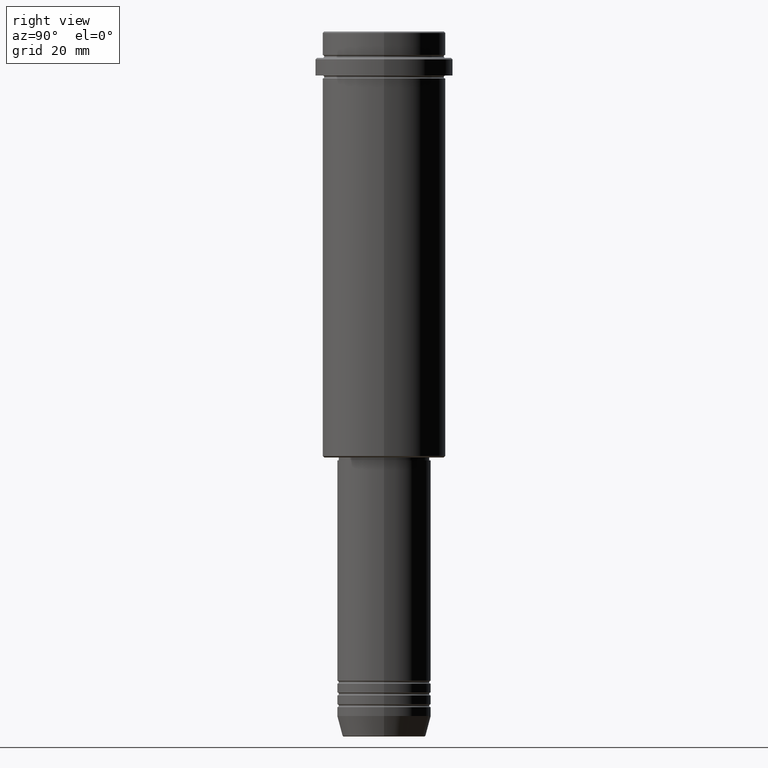
[diagram: clean part render]
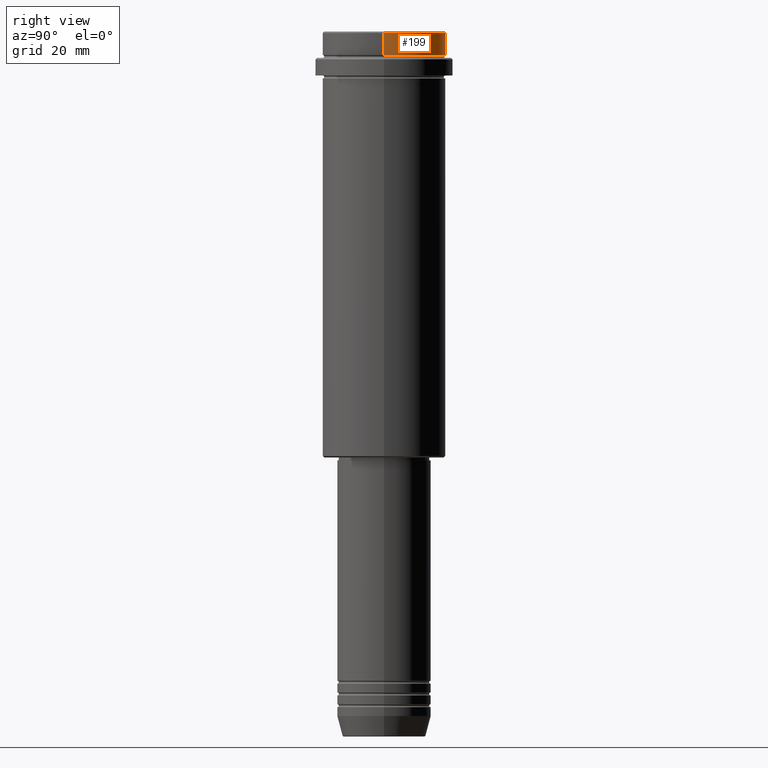
[diagram: same view with one face highlighted and labeled with its STEP entity id]
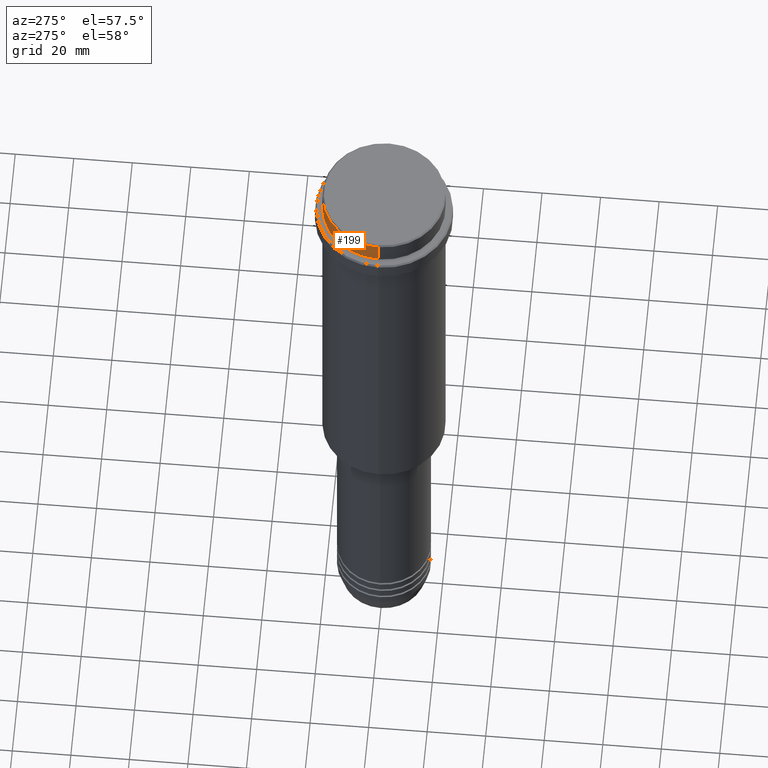
[diagram: same view with one face highlighted and labeled with its STEP entity id]
A machine part, right view. The second image highlights one B-rep face of the part: STEP entity #199.
A second angle (auxiliary view) of the same face is appended — the face is thin or edge-on in the first view.
In plain terms, the highlighted cylindrical surface (partial cylindrical patch) has radius 21 mm, axis along (-0, -0, 1).
Its self-contained STEP definition (entity closure, byte-faithful):
#20 = EDGE_CURVE ( 'NONE', #170, #836, #1331, .T. ) ;
#84 = DIRECTION ( 'NONE',  ( 1.000000000000000000, 0.000000000000000000, 0.000000000000000000 ) ) ;
#142 = AXIS2_PLACEMENT_3D ( 'NONE', #872, #751, #1298 ) ;
#170 = VERTEX_POINT ( 'NONE', #406 ) ;
#199 = ADVANCED_FACE ( 'NONE', ( #1274 ), #974, .T. ) ;
#230 = VERTEX_POINT ( 'NONE', #448 ) ;
#235 = EDGE_CURVE ( 'NONE', #836, #1180, #1204, .T. ) ;
#244 = DIRECTION ( 'NONE',  ( -0.000000000000000000, -0.000000000000000000, 1.000000000000000000 ) ) ;
#251 = CARTESIAN_POINT ( 'NONE',  ( -21.00000000000000000, 2.571758278209441661E-15, 0.000000000000000000 ) ) ;
#308 = CARTESIAN_POINT ( 'NONE',  ( 21.00000000000000000, 0.000000000000000000, -0.5000000000000108802 ) ) ;
#348 = CARTESIAN_POINT ( 'NONE',  ( 0.000000000000000000, 0.000000000000000000, -0.5000000000000108802 ) ) ;
#406 = CARTESIAN_POINT ( 'NONE',  ( -21.00000000000000000, 2.571758278209441661E-15, -7.999999999999998224 ) ) ;
#448 = CARTESIAN_POINT ( 'NONE',  ( 21.00000000000000000, 0.000000000000000000, -7.999999999999998224 ) ) ;
#484 = VECTOR ( 'NONE', #244, 1000.000000000000000 ) ;
#524 = ORIENTED_EDGE ( 'NONE', *, *, #1170, .T. ) ;
#532 = CARTESIAN_POINT ( 'NONE',  ( -21.00000000000000000, 2.571758278209441661E-15, -0.5000000000000108802 ) ) ;
#533 = AXIS2_PLACEMENT_3D ( 'NONE', #348, #1181, #1175 ) ;
#566 = EDGE_CURVE ( 'NONE', #230, #1180, #1322, .T. ) ;
#610 = ORIENTED_EDGE ( 'NONE', *, *, #566, .F. ) ;
#751 = DIRECTION ( 'NONE',  ( -0.000000000000000000, -0.000000000000000000, 1.000000000000000000 ) ) ;
#761 = CARTESIAN_POINT ( 'NONE',  ( 21.00000000000000000, 0.000000000000000000, 0.000000000000000000 ) ) ;
#793 = CIRCLE ( 'NONE', #1241, 21.00000000000000000 ) ;
#836 = VERTEX_POINT ( 'NONE', #532 ) ;
#872 = CARTESIAN_POINT ( 'NONE',  ( 0.000000000000000000, 0.000000000000000000, 0.000000000000000000 ) ) ;
#938 = DIRECTION ( 'NONE',  ( -0.000000000000000000, -0.000000000000000000, 1.000000000000000000 ) ) ;
#959 = VECTOR ( 'NONE', #1087, 1000.000000000000000 ) ;
#974 = CYLINDRICAL_SURFACE ( 'NONE', #142, 21.00000000000000000 ) ;
#1063 = ORIENTED_EDGE ( 'NONE', *, *, #235, .T. ) ;
#1084 = ORIENTED_EDGE ( 'NONE', *, *, #20, .T. ) ;
#1087 = DIRECTION ( 'NONE',  ( -0.000000000000000000, -0.000000000000000000, 1.000000000000000000 ) ) ;
#1135 = CARTESIAN_POINT ( 'NONE',  ( 0.000000000000000000, 0.000000000000000000, -7.999999999999998224 ) ) ;
#1170 = EDGE_CURVE ( 'NONE', #230, #170, #793, .T. ) ;
#1175 = DIRECTION ( 'NONE',  ( 1.000000000000000000, 0.000000000000000000, 0.000000000000000000 ) ) ;
#1180 = VERTEX_POINT ( 'NONE', #308 ) ;
#1181 = DIRECTION ( 'NONE',  ( 0.000000000000000000, 0.000000000000000000, -1.000000000000000000 ) ) ;
#1204 = CIRCLE ( 'NONE', #533, 21.00000000000000000 ) ;
#1241 = AXIS2_PLACEMENT_3D ( 'NONE', #1135, #938, #84 ) ;
#1274 = FACE_OUTER_BOUND ( 'NONE', #1341, .T. ) ;
#1298 = DIRECTION ( 'NONE',  ( 1.000000000000000000, 0.000000000000000000, 0.000000000000000000 ) ) ;
#1322 = LINE ( 'NONE', #761, #959 ) ;
#1331 = LINE ( 'NONE', #251, #484 ) ;
#1341 = EDGE_LOOP ( 'NONE', ( #524, #1084, #1063, #610 ) ) ;